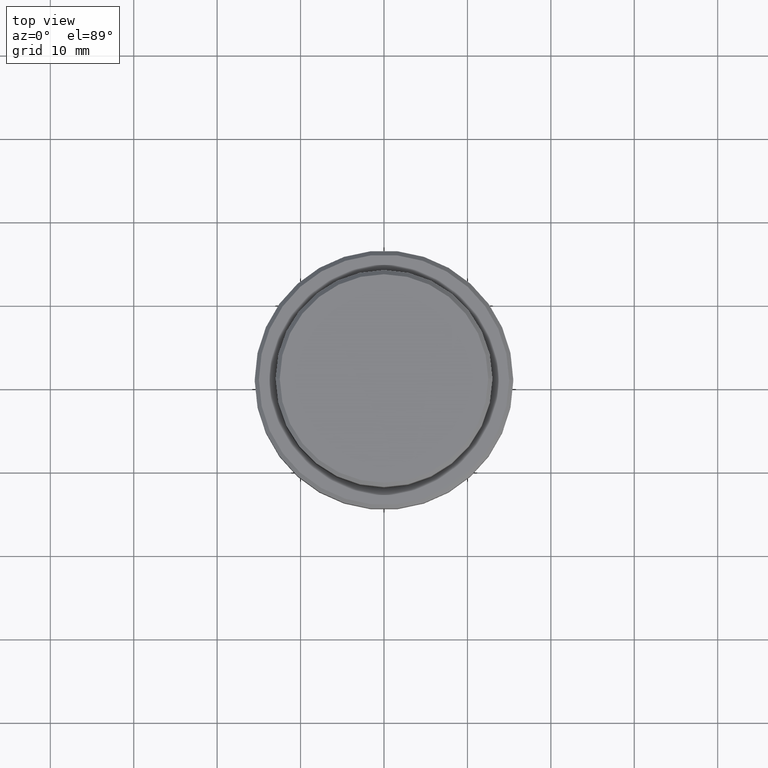
[diagram: clean part render]
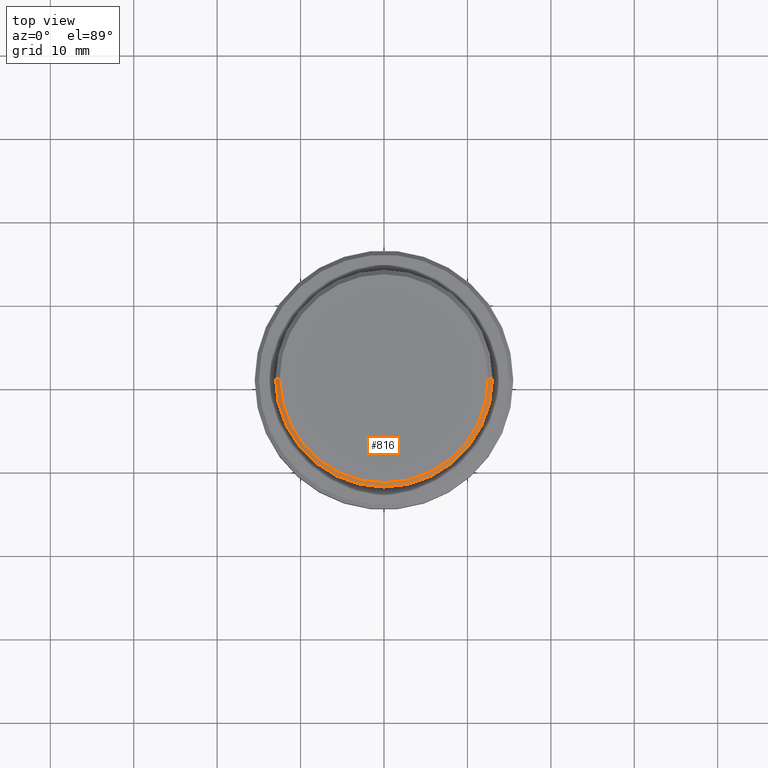
[diagram: same view with one face highlighted and labeled with its STEP entity id]
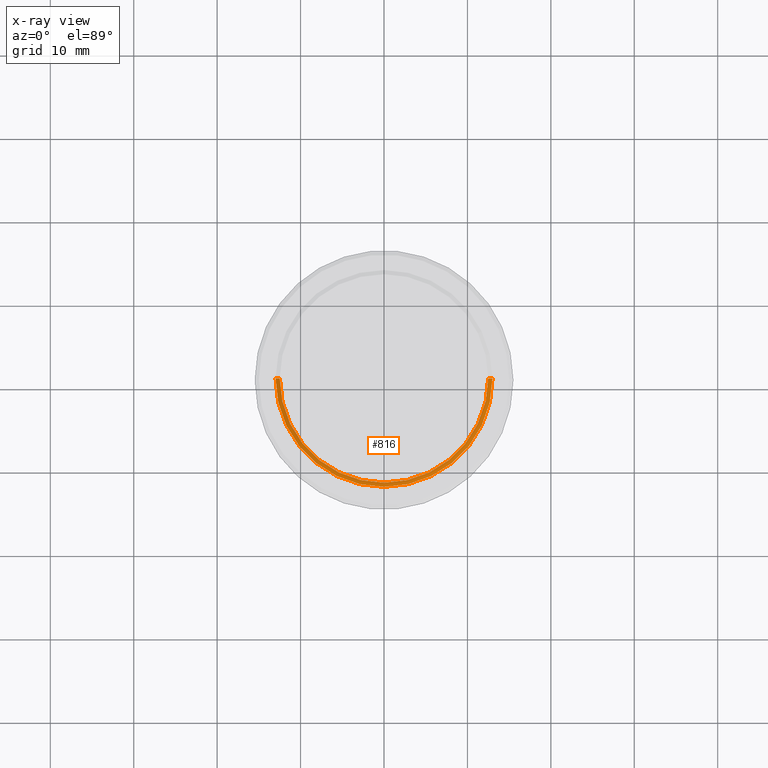
[diagram: x-ray of the same camera — body ghosted, the highlighted face saturated]
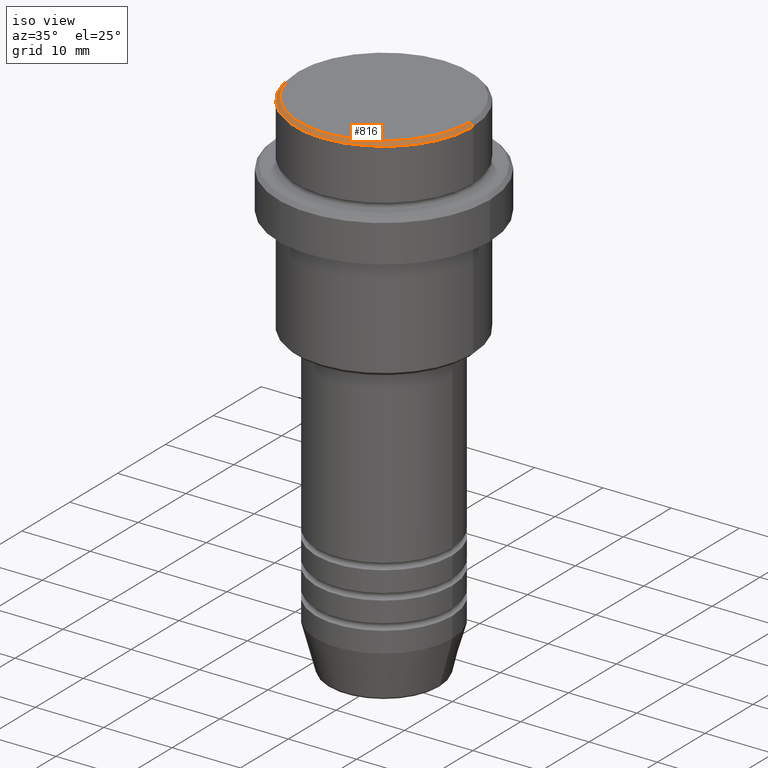
[diagram: same view with one face highlighted and labeled with its STEP entity id]
A machine part, top view. The second image highlights one B-rep face of the part: STEP entity #816.
The next image is the same camera in x-ray: the body ghosted, the highlighted face saturated — about 0% of this face is hidden behind the body in this view.
A second angle (iso view) of the same face is appended — the face is thin or edge-on in the first view.
In plain terms, the highlighted conical surface has half-angle 45 deg.
Its self-contained STEP definition (entity closure, byte-faithful):
#6 = VERTEX_POINT ( 'NONE', #880 ) ;
#129 = DIRECTION ( 'NONE',  ( -0.000000000000000000, -0.000000000000000000, 1.000000000000000000 ) ) ;
#219 = CARTESIAN_POINT ( 'NONE',  ( 0.000000000000000000, 0.000000000000000000, -0.5000000000000038858 ) ) ;
#225 = CARTESIAN_POINT ( 'NONE',  ( -12.50000000000001243, 0.000000000000000000, 0.000000000000000000 ) ) ;
#302 = AXIS2_PLACEMENT_3D ( 'NONE', #219, #559, #552 ) ;
#310 = CARTESIAN_POINT ( 'NONE',  ( -12.50000000000001243, 0.000000000000000000, 0.000000000000000000 ) ) ;
#384 = VERTEX_POINT ( 'NONE', #225 ) ;
#391 = EDGE_CURVE ( 'NONE', #6, #1180, #919, .T. ) ;
#399 = AXIS2_PLACEMENT_3D ( 'NONE', #1003, #461, #670 ) ;
#402 = EDGE_CURVE ( 'NONE', #384, #742, #1361, .T. ) ;
#426 = CARTESIAN_POINT ( 'NONE',  ( -12.99999999999999822, 1.592040838891558898E-15, -0.5000000000000038858 ) ) ;
#442 = CONICAL_SURFACE ( 'NONE', #399, 12.50000000000001243, 0.7853981633974291832 ) ;
#444 = VECTOR ( 'NONE', #1300, 1000.000000000000000 ) ;
#461 = DIRECTION ( 'NONE',  ( 0.000000000000000000, 0.000000000000000000, -1.000000000000000000 ) ) ;
#490 = ORIENTED_EDGE ( 'NONE', *, *, #391, .F. ) ;
#552 = DIRECTION ( 'NONE',  ( 1.000000000000000000, 0.000000000000000000, 0.000000000000000000 ) ) ;
#559 = DIRECTION ( 'NONE',  ( 0.000000000000000000, 0.000000000000000000, -1.000000000000000000 ) ) ;
#658 = DIRECTION ( 'NONE',  ( 1.000000000000000000, 0.000000000000000000, 0.000000000000000000 ) ) ;
#670 = DIRECTION ( 'NONE',  ( -1.000000000000000000, 0.000000000000000000, 0.000000000000000000 ) ) ;
#676 = EDGE_LOOP ( 'NONE', ( #1198, #1379, #1098, #490 ) ) ;
#733 = AXIS2_PLACEMENT_3D ( 'NONE', #1095, #129, #658 ) ;
#742 = VERTEX_POINT ( 'NONE', #953 ) ;
#773 = DIRECTION ( 'NONE',  ( 0.7071067811865340280, 8.659560562354767690E-17, -0.7071067811865610064 ) ) ;
#816 = ADVANCED_FACE ( 'NONE', ( #1306 ), #442, .T. ) ;
#875 = LINE ( 'NONE', #1320, #1132 ) ;
#880 = CARTESIAN_POINT ( 'NONE',  ( 12.99999999999999822, 0.000000000000000000, -0.5000000000000038858 ) ) ;
#894 = EDGE_CURVE ( 'NONE', #742, #6, #875, .T. ) ;
#919 = CIRCLE ( 'NONE', #302, 12.99999999999999822 ) ;
#953 = CARTESIAN_POINT ( 'NONE',  ( 12.50000000000001243, 1.561424668912876097E-15, 0.000000000000000000 ) ) ;
#1003 = CARTESIAN_POINT ( 'NONE',  ( 0.000000000000000000, 0.000000000000000000, 0.000000000000000000 ) ) ;
#1095 = CARTESIAN_POINT ( 'NONE',  ( 0.000000000000000000, 0.000000000000000000, 0.000000000000000000 ) ) ;
#1098 = ORIENTED_EDGE ( 'NONE', *, *, #1126, .T. ) ;
#1126 = EDGE_CURVE ( 'NONE', #384, #1180, #1280, .T. ) ;
#1132 = VECTOR ( 'NONE', #773, 1000.000000000000000 ) ;
#1180 = VERTEX_POINT ( 'NONE', #426 ) ;
#1198 = ORIENTED_EDGE ( 'NONE', *, *, #894, .F. ) ;
#1280 = LINE ( 'NONE', #310, #444 ) ;
#1300 = DIRECTION ( 'NONE',  ( -0.7071067811865340280, 0.000000000000000000, -0.7071067811865610064 ) ) ;
#1306 = FACE_OUTER_BOUND ( 'NONE', #676, .T. ) ;
#1320 = CARTESIAN_POINT ( 'NONE',  ( 12.50000000000001243, 1.530808498934193099E-15, 0.000000000000000000 ) ) ;
#1361 = CIRCLE ( 'NONE', #733, 12.50000000000001243 ) ;
#1379 = ORIENTED_EDGE ( 'NONE', *, *, #402, .F. ) ;